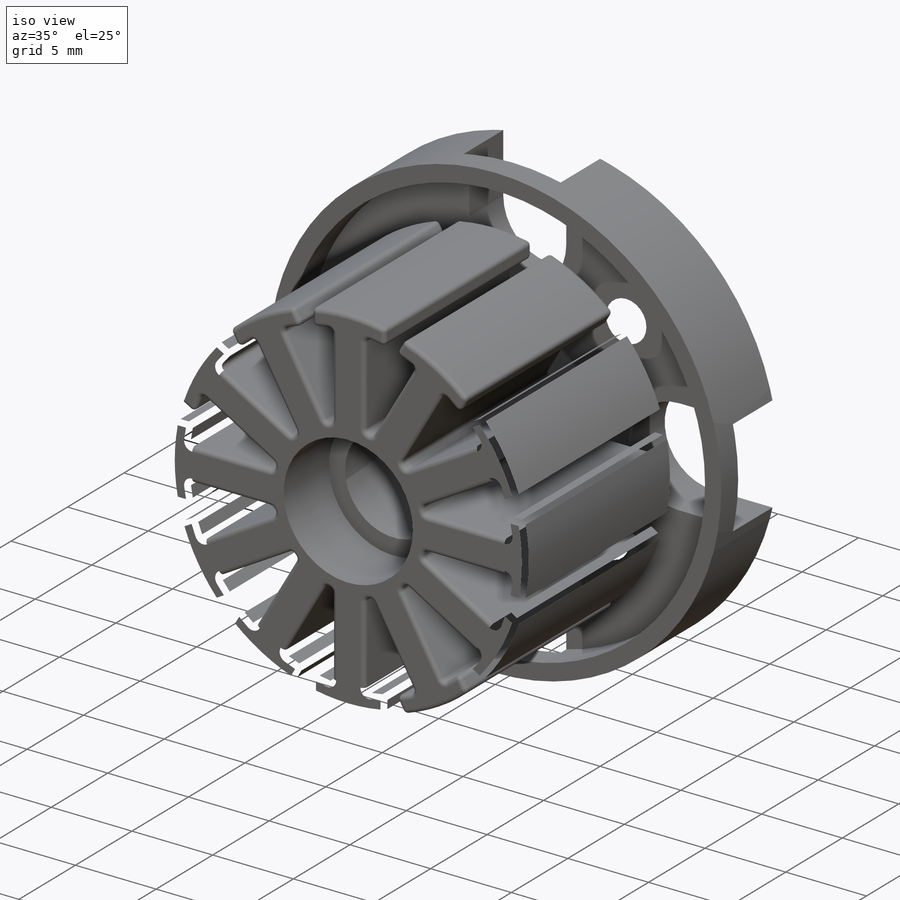
[diagram: iso view]
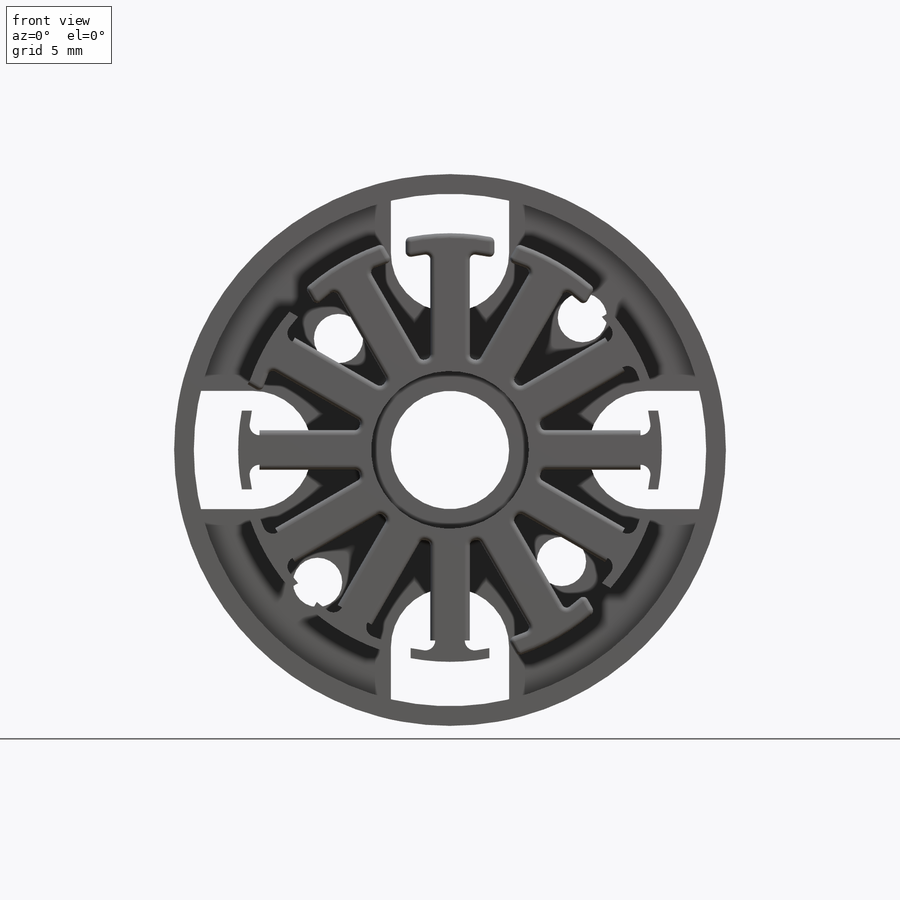
[diagram: front view]
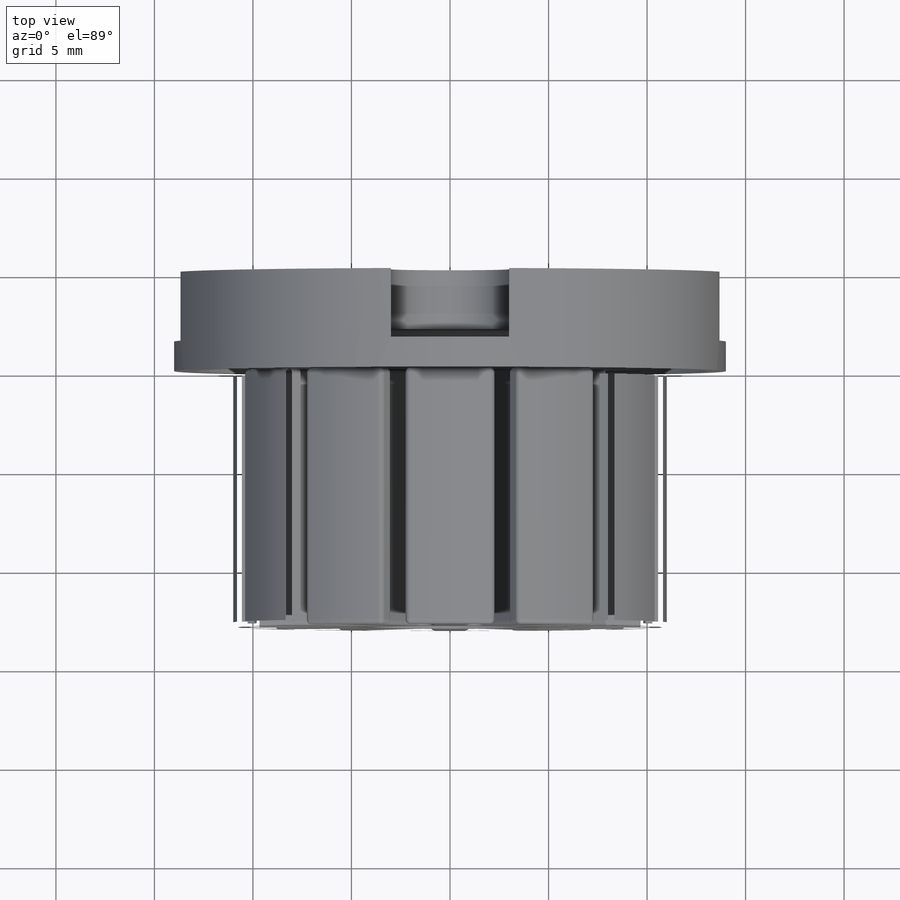
[diagram: top view]
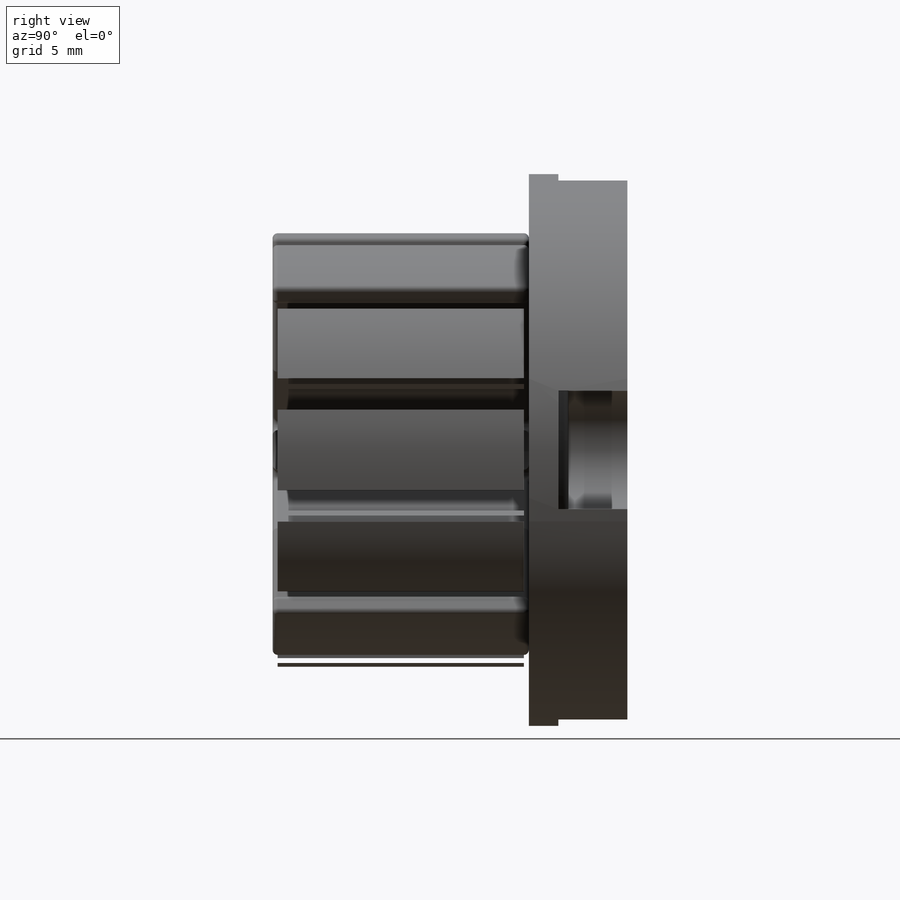
[diagram: right view]
SOLIDWORKS PART (.sldprt)
format: sldprt  version: not decoded by parser v0  size: 15,227,904 bytes
history: native  units: mm
features: sketch x19, extrude x6, cut_extrude x5, plane x4, fillet x4, thread x4, pattern_circular x2, material x1, pattern_linear x1, hole x1, sweep x1 (+13 scaffold rows collapsed)
feature tree (61):
  scaffold x13  (default folders/planes/origin — collapsed)
  material  "6061 Alloy"
  sketch  "Sketch1"  dims[D1=28.0mm]
  extrude  "Boss-Extrude1"  Depth=5mm
  sketch  "Sketch2"  dims[D1=26.0mm]
  cut_extrude  "Cut-Extrude1"  Depth=2mm
  sketch  "Sketch3"  dims[D1=6.0mm D2=7.0mm D3=4.0]
  cut_extrude  "Cut-Extrude2"  Depth=3.5mm
  sketch  "Sketch6"  dims[D1=9.5mm]
  extrude  "Boss-Extrude2"  Depth=15mm
  sketch  "Sketch4"  dims[D1=8.0mm]
  cut_extrude  "Cut-Extrude4"  Depth=4mm
  sketch  "Sketch7"  dims[D1=6.0mm]
  cut_extrude  "Cut-Extrude5"  [1 undecoded]
  sketch  "Sketch8"  dims[D1=8.0mm]
  cut_extrude  "Cut-Extrude6"  Depth=4mm
  plane  "Plane1"
  sketch  "Sketch9"  dims[c1.D1=~13.030023mm c1.D2=~3.013331mm c2.D1=2.0mm]
  extrude  "Boss-Extrude3"  Depth=4mm
  sketch  "Sketch10"  dims[c1.D1=~15.790583mm c1.D3=22.0mm c2.D1=1.0mm c2.D2=4.5mm c2.D4=2.0mm]
  extrude  "Boss-Extrude4"  [1 undecoded]
  pattern_circular  "CirPattern2"  Count=12 Angle=30deg
  fillet  "Fillet1"  Radius=0.25mm
  fillet  "Fillet2"  Radius=0.25mm
  fillet  "Fillet3"  Radius=0.25mm
  plane  "Plane2"  Offset=5mm
  sketch  "Sketch11"  dims[c1.D1=~1.29259mm c1.D3=0.25mm c1.D4=0.25mm c2.D1=0.0mm c2.D2=0.125mm]
  extrude  "Boss-Extrude5"  Depth=0.125mm
  fillet  "Fillet4"  Radius=0.0625mm
  pattern_linear  "LPattern1"  Count1=31 Count2=1 Spacing1=0.15mm Spacing2=10mm
  pattern_circular  "CirPattern7"  Count=12 Angle=30deg
  hole  "M3 Tapped Hole1"  Diameter=2.5mm Depth=3mm
  sketch  "Sketch13"  dims[c1.D1=19.0mm c1.D2=16.0mm c1.D3=~48.204912mm c2.D3=45.0deg c2.D4=~12.374369mm c3.D3=~48.204912mm c4.D3=45.0deg c4.D4=~12.374369mm]
  sketch  "Sketch12"  dims[hole-wizard template sketch: 50 standard entries collapsed; hole parameters above]
  thread  "Hole Thread1"  Diameter=3mm  [1 undecoded]
  thread  "Hole Thread2"  Diameter=3mm  [1 undecoded]
  thread  "Hole Thread3"  Diameter=3mm  [1 undecoded]
  thread  "Hole Thread4"  Diameter=3mm  [1 undecoded]
  plane  "Plane3"  Offset=10mm
  sketch  "Sketch14"  dims[D1=3.0mm]
  plane  "Plane4"  Offset=9mm
  sketch  "Sketch15"  dims[D1=0.0mm]
  sketch  "Sketch16"  dims[c1.D1=3.0mm c1.D2=3.0mm c1.D3=3.0mm c2.D1=6.0mm]
  sketch  "Sketch17"  dims[c1.D1=10.0mm c1.D2=10.0mm c2.D1=~7.184775mm]
  sweep  "Sweep2"
  sketch  "Sketch18"  dims[D1=2.01mm]
  extrude  "Boss-Extrude9"  Depth=2mm
  sketch  "Sketch19"
  sketch  "Sketch20"  dims[c1.D1=~1.06066mm c2.D1=~80.201815deg]
decode coverage: 39 of 43 modeling features carry decoded parameters
note: ~ marks probable driven/reference dimensions
note: 6 parameter values undecoded
note: suppression state not decoded; provenance and decode notes live in map.json
